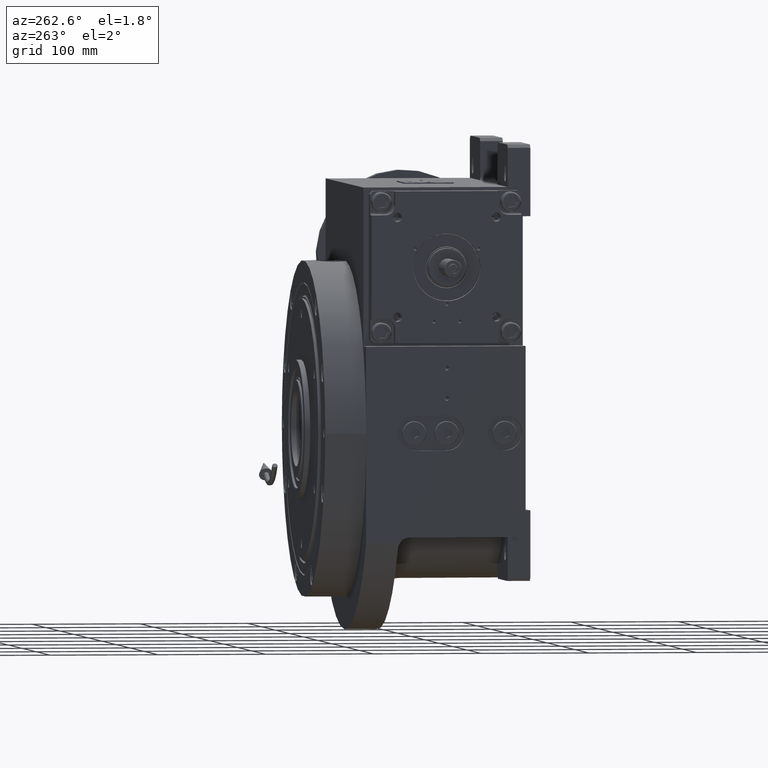
[diagram: clean part render]
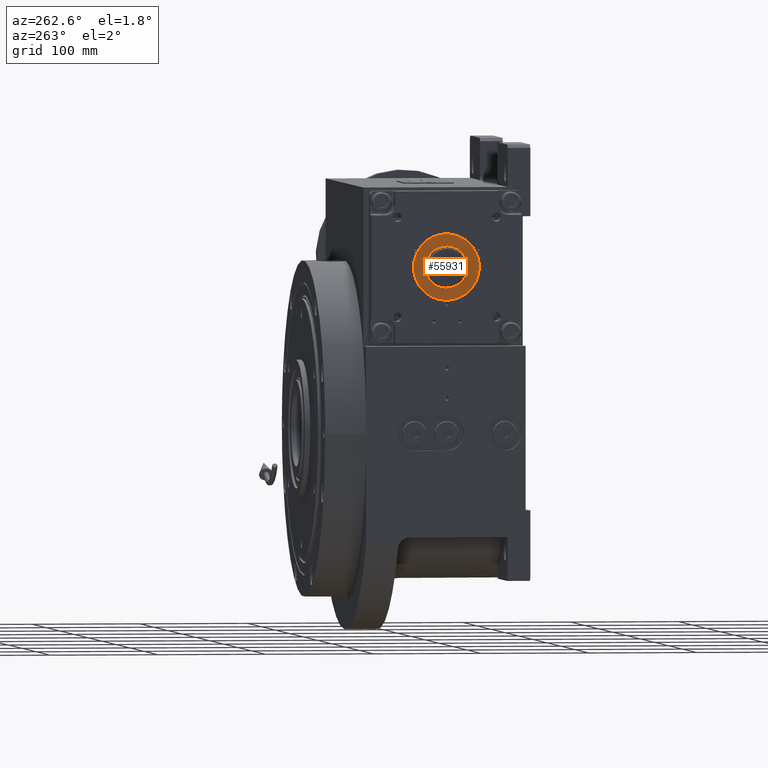
[diagram: same view with one face highlighted and labeled with its STEP entity id]
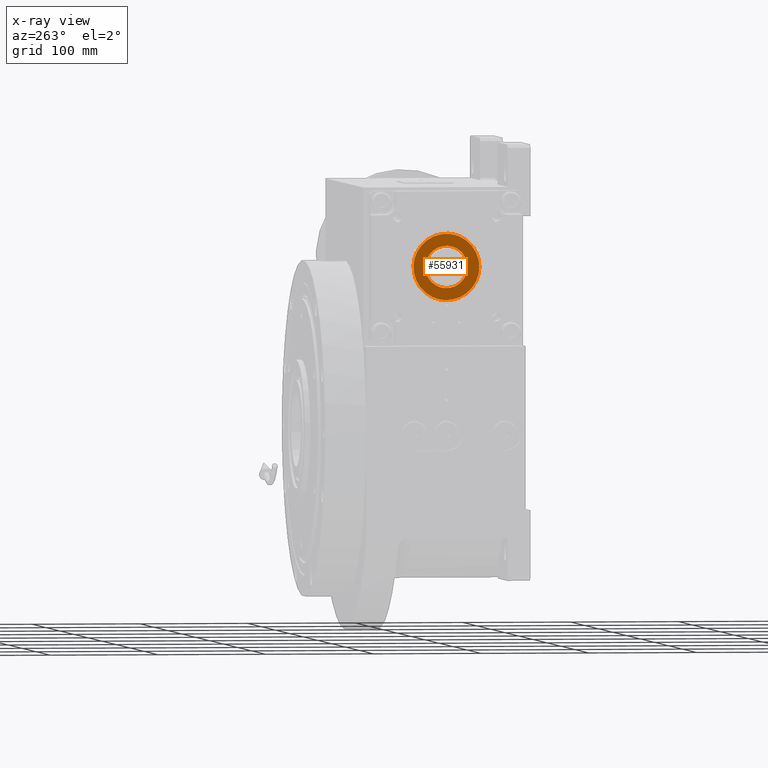
[diagram: x-ray of the same camera — body ghosted, the highlighted face saturated]
A machine part, auxiliary view. The second image highlights one B-rep face of the part: STEP entity #55931.
The next image is the same camera in x-ray: the body ghosted, the highlighted face saturated — about 0% of this face is hidden behind the body in this view.
In plain terms, the highlighted planar face has unit normal (1, 0, 0).
Its self-contained STEP definition (entity closure, byte-faithful):
#283 = CARTESIAN_POINT ( 'NONE',  ( -30.59585466301535206, 7.000000000000065725, -17.92263623151005092 ) ) ;
#444 = DIRECTION ( 'NONE',  ( 1.000000000000000000, 8.877763321038397935E-17, -1.207367539279858053E-14 ) ) ;
#1186 = CARTESIAN_POINT ( 'NONE',  ( 3.538835890992686473E-13, 7.000000000000032863, -30.59585499976417466 ) ) ;
#2858 = VERTEX_POINT ( 'NONE', #10158 ) ;
#3775 = EDGE_LOOP ( 'NONE', ( #62012, #23999 ) ) ;
#4972 = DIRECTION ( 'NONE',  ( -9.544260106448651823E-17, -1.000000000000000000, -1.551379138747651299E-15 ) ) ;
#6028 = VERTEX_POINT ( 'NONE', #9648 ) ;
#7810 = CARTESIAN_POINT ( 'NONE',  ( -17.92263851798103147, 7.000000000000005329, 30.59585498213072441 ) ) ;
#9181 = ORIENTED_EDGE ( 'NONE', *, *, #43729, .T. ) ;
#9648 = CARTESIAN_POINT ( 'NONE',  ( 3.538835890992686473E-13, 7.000000000000032863, -30.59585499976417466 ) ) ;
#10158 = CARTESIAN_POINT ( 'NONE',  ( 19.54009600442774186, 7.000000000000006217, -2.706168622523819067E-13 ) ) ;
#11246 = CARTESIAN_POINT ( 'NONE',  ( -17.92263667843241137, 7.000000000000057732, -30.59585428157826925 ) ) ;
#13112 = CARTESIAN_POINT ( 'NONE',  ( 30.59585386392915751, 6.999999453002225813, 3.010220371579830356E-08 ) ) ;
#13462 = CARTESIAN_POINT ( 'NONE',  ( 30.59585466301586365, 6.999999999999945821, 17.92263681493626493 ) ) ;
#15791 = FACE_BOUND ( 'NONE', #3775, .T. ) ;
#16465 = EDGE_CURVE ( 'NONE', #2858, #19245, #41012, .T. ) ;
#17602 = CIRCLE ( 'NONE', #32302, 19.54009600442809713 ) ;
#18099 = CARTESIAN_POINT ( 'NONE',  ( 17.92263600573685522, 6.999999999999954703, 30.59585501739768532 ) ) ;
#18157 = EDGE_CURVE ( 'NONE', #6028, #38292, #35400, .T. ) ;
#19245 = VERTEX_POINT ( 'NONE', #52025 ) ;
#23999 = ORIENTED_EDGE ( 'NONE', *, *, #16465, .T. ) ;
#27163 = DIRECTION ( 'NONE',  ( -1.000000000000000000, 8.825441880761539048E-17, 1.169897512198759967E-14 ) ) ;
#28620 = EDGE_CURVE ( 'NONE', #57470, #6028, #61225, .T. ) ;
#31401 = ORIENTED_EDGE ( 'NONE', *, *, #18157, .T. ) ;
#31583 = CARTESIAN_POINT ( 'NONE',  ( 30.59585386392915751, 6.999999453002225813, 3.010220371579830356E-08 ) ) ;
#32302 = AXIS2_PLACEMENT_3D ( 'NONE', #54597, #48932, #444 ) ;
#32456 = DIRECTION ( 'NONE',  ( -8.825441880763353428E-17, -1.000000000000000000, -1.551379138747658399E-15 ) ) ;
#34146 =( BOUNDED_CURVE ( )  B_SPLINE_CURVE ( 3, ( #55961, #60570, #7810, #39365, #18099, #13462, #13112 ),
 .UNSPECIFIED., .F., .F. ) 
 B_SPLINE_CURVE_WITH_KNOTS ( ( 4, 3, 4 ),
 ( 2.649343949755345484, 4.220140309317068628, 5.790936668878790883 ),
 .UNSPECIFIED. ) 
 CURVE ( )  GEOMETRIC_REPRESENTATION_ITEM ( )  RATIONAL_B_SPLINE_CURVE ( ( 1.000000000000000000, 0.8047378464011498700, 0.8047378464011498700, 1.000000000000000000, 0.8047378464011499810, 0.8047378464011499810, 1.000000000000000000 ) ) 
 REPRESENTATION_ITEM ( '' )  );
#35400 =( BOUNDED_CURVE ( )  B_SPLINE_CURVE ( 3, ( #55149, #11246, #283, #65794 ),
 .UNSPECIFIED., .F., .F. ) 
 B_SPLINE_CURVE_WITH_KNOTS ( ( 4, 4 ),
 ( 1.078547700003368304, 2.649344018509781851 ),
 .UNSPECIFIED. ) 
 CURVE ( )  GEOMETRIC_REPRESENTATION_ITEM ( )  RATIONAL_B_SPLINE_CURVE ( ( 1.000000000000000000, 0.8047378560779790968, 0.8047378560779790968, 1.000000000000000000 ) ) 
 REPRESENTATION_ITEM ( '' )  );
#38292 = VERTEX_POINT ( 'NONE', #68219 ) ;
#38391 = CARTESIAN_POINT ( 'NONE',  ( 30.59585386392915751, 6.999999453002225813, 3.010220371579830356E-08 ) ) ;
#39365 = CARTESIAN_POINT ( 'NONE',  ( -1.256122079615340503E-06, 6.999999999999979572, 30.59585499976421019 ) ) ;
#41012 = CIRCLE ( 'NONE', #61332, 19.54009600442807937 ) ;
#41223 = ORIENTED_EDGE ( 'NONE', *, *, #28620, .T. ) ;
#43359 = CARTESIAN_POINT ( 'NONE',  ( 17.92263784528556414, 7.000000000000006217, -30.59585571795012271 ) ) ;
#43729 = EDGE_CURVE ( 'NONE', #38292, #57470, #34146, .T. ) ;
#47112 = CARTESIAN_POINT ( 'NONE',  ( 0.000000000000000000, 7.000000000000006217, -1.734723475976807094E-15 ) ) ;
#47589 = EDGE_CURVE ( 'NONE', #2858, #19245, #17602, .T. ) ;
#48932 = DIRECTION ( 'NONE',  ( 9.544260106448651823E-17, 1.000000000000000000, 1.551379138747651299E-15 ) ) ;
#52025 = CARTESIAN_POINT ( 'NONE',  ( -19.54009600442763173, 7.000000000000006217, 2.116362640691704655E-13 ) ) ;
#54597 = CARTESIAN_POINT ( 'NONE',  ( 0.000000000000000000, 7.000000000000006217, 1.734723475976807094E-15 ) ) ;
#55149 = CARTESIAN_POINT ( 'NONE',  ( 3.538835890992686473E-13, 7.000000000000032863, -30.59585499976417466 ) ) ;
#55931 = ADVANCED_FACE ( 'NONE', ( #64313, #15791 ), #58993, .F. ) ;
#55961 = CARTESIAN_POINT ( 'NONE',  ( -30.59585386392801709, 6.999999453002198280, -3.010219157273397173E-08 ) ) ;
#57198 = EDGE_LOOP ( 'NONE', ( #41223, #31401, #9181 ) ) ;
#57470 = VERTEX_POINT ( 'NONE', #31583 ) ;
#58993 = PLANE ( 'NONE',  #59201 ) ;
#59201 = AXIS2_PLACEMENT_3D ( 'NONE', #59335, #32456, #27163 ) ;
#59335 = CARTESIAN_POINT ( 'NONE',  ( 0.000000000000000000, 7.000000000000006217, 0.000000000000000000 ) ) ;
#60570 = CARTESIAN_POINT ( 'NONE',  ( -30.59585613465519316, 7.000000000000034639, 17.92263675473179063 ) ) ;
#61225 =( BOUNDED_CURVE ( )  B_SPLINE_CURVE ( 3, ( #38391, #65991, #43359, #1186 ),
 .UNSPECIFIED., .F., .F. ) 
 B_SPLINE_CURVE_WITH_KNOTS ( ( 4, 4 ),
 ( 5.790936606565921352, 7.361733007182954758 ),
 .UNSPECIFIED. ) 
 CURVE ( )  GEOMETRIC_REPRESENTATION_ITEM ( )  RATIONAL_B_SPLINE_CURVE ( ( 1.000000000000000000, 0.8047378367243200881, 0.8047378367243200881, 1.000000000000000000 ) ) 
 REPRESENTATION_ITEM ( '' )  );
#61332 = AXIS2_PLACEMENT_3D ( 'NONE', #47112, #4972, #68717 ) ;
#62012 = ORIENTED_EDGE ( 'NONE', *, *, #47589, .F. ) ;
#64313 = FACE_OUTER_BOUND ( 'NONE', #57198, .T. ) ;
#65794 = CARTESIAN_POINT ( 'NONE',  ( -30.59585386392801709, 6.999999453002198280, -3.010219157273397173E-08 ) ) ;
#65991 = CARTESIAN_POINT ( 'NONE',  ( 30.59585613465581844, 6.999999999999977796, -17.92263733815798687 ) ) ;
#68219 = CARTESIAN_POINT ( 'NONE',  ( -30.59585386392801709, 6.999999453002198280, -3.010219157273397173E-08 ) ) ;
#68717 = DIRECTION ( 'NONE',  ( 1.000000000000000000, 8.877763321038405331E-17, -1.160876950123680412E-14 ) ) ;